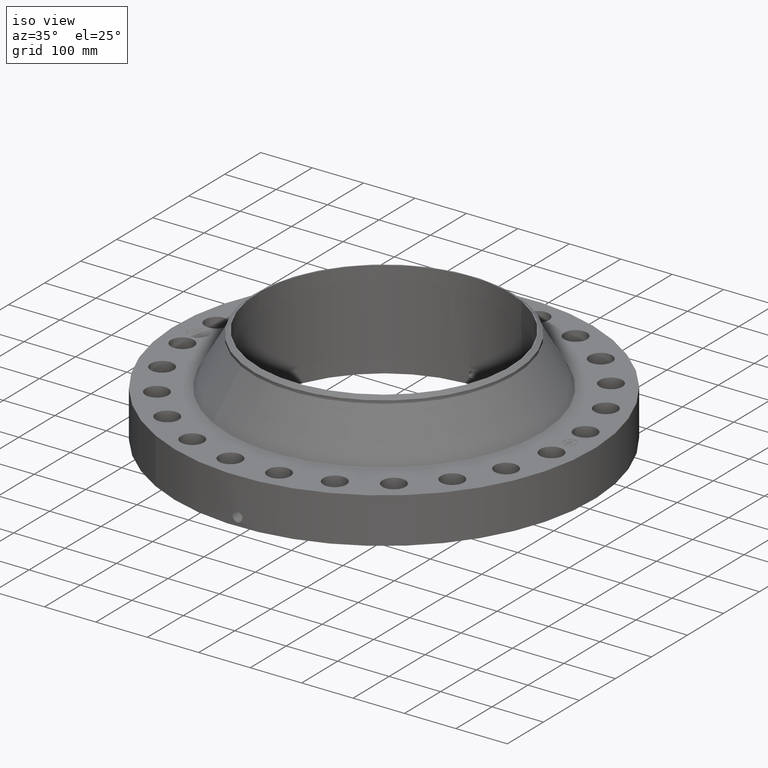
[diagram: clean part render]
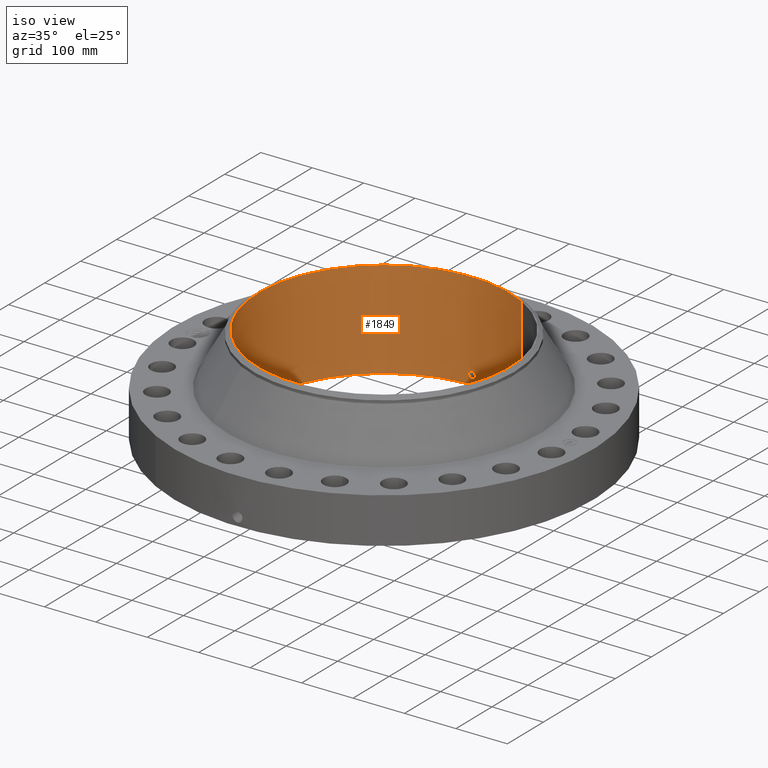
[diagram: same view with one face highlighted and labeled with its STEP entity id]
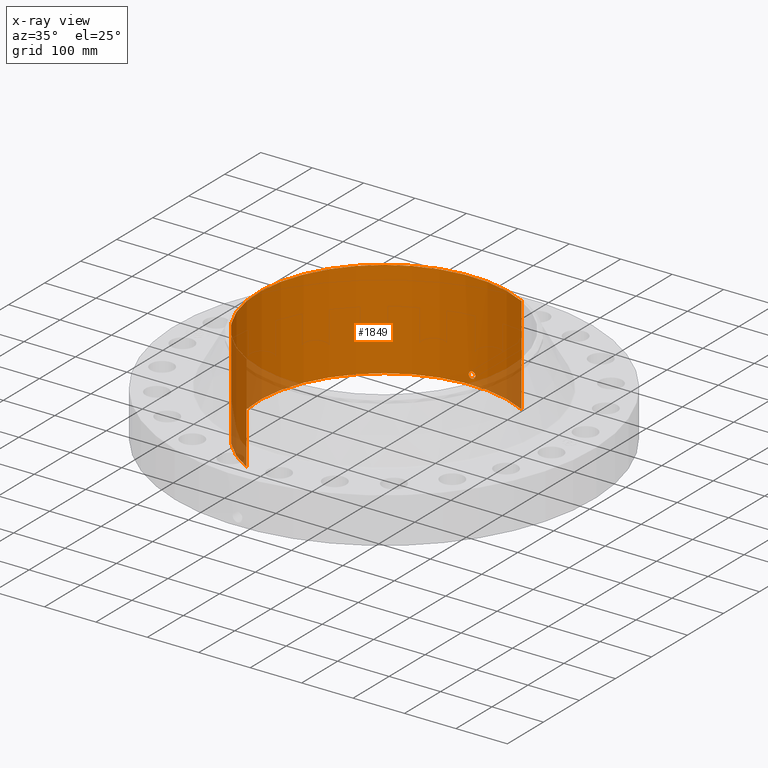
[diagram: x-ray of the same camera — body ghosted, the highlighted face saturated]
A machine part, iso view. The second image highlights one B-rep face of the part: STEP entity #1849.
The next image is the same camera in x-ray: the body ghosted, the highlighted face saturated — about 8% of this face is hidden behind the body in this view.
In plain terms, the highlighted cylindrical surface (partial cylindrical patch) has radius 244.475 mm, axis along (0, 0, -1).
Its self-contained STEP definition (entity closure, byte-faithful):
#263=AXIS2_PLACEMENT_3D('Circle Axis2P3D',#261,#262,$) ;
#1726=AXIS2_PLACEMENT_3D('Cylinder Axis2P3D',#1723,#1724,#1725) ;
#1798=AXIS2_PLACEMENT_3D('Circle Axis2P3D',#1796,#1797,$) ;
#256=CARTESIAN_POINT('Vertex',(4.61447080908,8.44673215823,0.250000000001)) ;
#258=CARTESIAN_POINT('Vertex',(-4.61447080908,-8.44673215823,0.250000000001)) ;
#261=CARTESIAN_POINT('Axis2P3D Location',(0.,0.,0.250000000001)) ;
#1723=CARTESIAN_POINT('Axis2P3D Location',(0.,0.,4.00000000002)) ;
#1732=CARTESIAN_POINT('Vertex',(4.61447080908,8.44673215823,7.75000000003)) ;
#1734=CARTESIAN_POINT('Vertex',(-4.61447080908,-8.44673215823,7.75000000003)) ;
#1737=CARTESIAN_POINT('Line Origine',(4.61447080908,8.44673215823,4.00000000002)) ;
#1742=CARTESIAN_POINT('Line Origine',(-4.61447080908,-8.44673215823,4.00000000002)) ;
#1796=CARTESIAN_POINT('Axis2P3D Location',(0.,0.,7.75000000003)) ;
#1808=CARTESIAN_POINT('Control Point',(0.219395640473,9.62249918439,1.05985638466)) ;
#1809=CARTESIAN_POINT('Control Point',(0.194442916891,9.62306811339,1.1055320388)) ;
#1810=CARTESIAN_POINT('Control Point',(0.157604791908,9.62382710762,1.14471221519)) ;
#1811=CARTESIAN_POINT('Control Point',(0.111106772788,9.62456527477,1.17324360765)) ;
#1812=CARTESIAN_POINT('Control Point',(0.0336714944283,9.62515257644,1.19588285391)) ;
#1813=CARTESIAN_POINT('Control Point',(-0.0446733581926,9.6249496081,1.18805605975)) ;
#1814=CARTESIAN_POINT('Control Point',(-0.070303761095,9.62479204385,1.18204303384)) ;
#1815=CARTESIAN_POINT('Control Point',(-0.143960694998,9.62409577409,1.15420952188)) ;
#1816=CARTESIAN_POINT('Control Point',(-0.203248804337,9.62295930718,1.09949219682)) ;
#1817=CARTESIAN_POINT('Control Point',(-0.232213125719,9.62221396751,1.05325109681)) ;
#1818=CARTESIAN_POINT('Control Point',(-0.255841100071,9.62160132498,0.975105117913)) ;
#1819=CARTESIAN_POINT('Control Point',(-0.248281734328,9.62179716896,0.895742423877)) ;
#1820=CARTESIAN_POINT('Control Point',(-0.242047982587,9.62196101179,0.869181609855)) ;
#1821=CARTESIAN_POINT('Control Point',(-0.232314831557,9.62220462327,0.843792036005)) ;
#1822=CARTESIAN_POINT('Control Point',(-0.219395640473,9.62249918439,0.820143615352)) ;
#1823=CARTESIAN_POINT('Vertex',(0.219395640473,9.62249918439,1.05985638466)) ;
#1825=CARTESIAN_POINT('Vertex',(-0.219395640473,9.62249918439,0.820143615352)) ;
#1829=CARTESIAN_POINT('Control Point',(-0.219395640473,9.62249918439,0.820143615352)) ;
#1830=CARTESIAN_POINT('Control Point',(-0.194442916876,9.62306811339,0.774467961185)) ;
#1831=CARTESIAN_POINT('Control Point',(-0.157604791865,9.62382710762,0.735287784767)) ;
#1832=CARTESIAN_POINT('Control Point',(-0.111106772853,9.62456527477,0.706756392376)) ;
#1833=CARTESIAN_POINT('Control Point',(-0.0336714944623,9.62515257644,0.684117146098)) ;
#1834=CARTESIAN_POINT('Control Point',(0.0446733581911,9.6249496081,0.691943940252)) ;
#1835=CARTESIAN_POINT('Control Point',(0.0703037610858,9.62479204385,0.697956966162)) ;
#1836=CARTESIAN_POINT('Control Point',(0.143960694991,9.62409577409,0.72579047812)) ;
#1837=CARTESIAN_POINT('Control Point',(0.203248804332,9.62295930718,0.780507803184)) ;
#1838=CARTESIAN_POINT('Control Point',(0.232213125717,9.62221396751,0.826748903196)) ;
#1839=CARTESIAN_POINT('Control Point',(0.255841100083,9.62160132498,0.904894882132)) ;
#1840=CARTESIAN_POINT('Control Point',(0.248281734321,9.62179716896,0.984257576213)) ;
#1841=CARTESIAN_POINT('Control Point',(0.242047982618,9.62196101179,1.01081839007)) ;
#1842=CARTESIAN_POINT('Control Point',(0.232314831578,9.62220462327,1.03620796396)) ;
#1843=CARTESIAN_POINT('Control Point',(0.219395640473,9.62249918439,1.05985638466)) ;
#262=DIRECTION('Axis2P3D Direction',(0.,0.,-0.0393700787402)) ;
#1724=DIRECTION('Axis2P3D Direction',(0.,0.,-0.0393700787402)) ;
#1725=DIRECTION('Axis2P3D XDirection',(-0.0188750212049,-0.0345504945626,0.)) ;
#1738=DIRECTION('Vector Direction',(0.,0.,-0.0393700787402)) ;
#1743=DIRECTION('Vector Direction',(0.,0.,-0.0393700787402)) ;
#1797=DIRECTION('Axis2P3D Direction',(0.,0.,-0.0393700787402)) ;
#1739=VECTOR('Line Direction',#1738,0.0393700787402) ;
#1744=VECTOR('Line Direction',#1743,0.0393700787402) ;
#1802=ORIENTED_EDGE('',*,*,#1800,.F.) ;
#1803=ORIENTED_EDGE('',*,*,#1746,.T.) ;
#1804=ORIENTED_EDGE('',*,*,#265,.T.) ;
#1805=ORIENTED_EDGE('',*,*,#1741,.F.) ;
#1846=ORIENTED_EDGE('',*,*,#1827,.F.) ;
#1847=ORIENTED_EDGE('',*,*,#1844,.F.) ;
#1848=FACE_BOUND('',#1845,.T.) ;
#1849=ADVANCED_FACE('PartBody',(#1806,#1848),#1727,.F.) ;
#1807=B_SPLINE_CURVE_WITH_KNOTS('',5,(#1808,#1809,#1810,#1811,#1812,#1813,#1814,#1815,#1816,#1817,#1818,#1819,#1820,#1821,#1822),.UNSPECIFIED.,.F.,.U.,(6,3,3,3,6),(0.,9.34848971271,14.0229242078,23.372964937,28.2131149326),.UNSPECIFIED.) ;
#1828=B_SPLINE_CURVE_WITH_KNOTS('',5,(#1829,#1830,#1831,#1832,#1833,#1834,#1835,#1836,#1837,#1838,#1839,#1840,#1841,#1842,#1843),.UNSPECIFIED.,.F.,.U.,(6,3,3,3,6),(0.,9.34848971812,14.0229242136,23.3729649426,28.2131149461),.UNSPECIFIED.) ;
#264=CIRCLE('generated circle',#263,9.62500000004) ;
#1799=CIRCLE('generated circle',#1798,9.62500000004) ;
#1727=CYLINDRICAL_SURFACE('generated cylinder',#1726,9.62500000004) ;
#265=EDGE_CURVE('',#259,#257,#264,.T.) ;
#1741=EDGE_CURVE('',#1733,#257,#1740,.T.) ;
#1746=EDGE_CURVE('',#1735,#259,#1745,.T.) ;
#1800=EDGE_CURVE('',#1735,#1733,#1799,.T.) ;
#1827=EDGE_CURVE('',#1824,#1826,#1807,.T.) ;
#1844=EDGE_CURVE('',#1826,#1824,#1828,.T.) ;
#1801=EDGE_LOOP('',(#1802,#1803,#1804,#1805)) ;
#1845=EDGE_LOOP('',(#1846,#1847)) ;
#1806=FACE_OUTER_BOUND('',#1801,.T.) ;
#1740=LINE('Line',#1737,#1739) ;
#1745=LINE('Line',#1742,#1744) ;
#257=VERTEX_POINT('',#256) ;
#259=VERTEX_POINT('',#258) ;
#1733=VERTEX_POINT('',#1732) ;
#1735=VERTEX_POINT('',#1734) ;
#1824=VERTEX_POINT('',#1823) ;
#1826=VERTEX_POINT('',#1825) ;